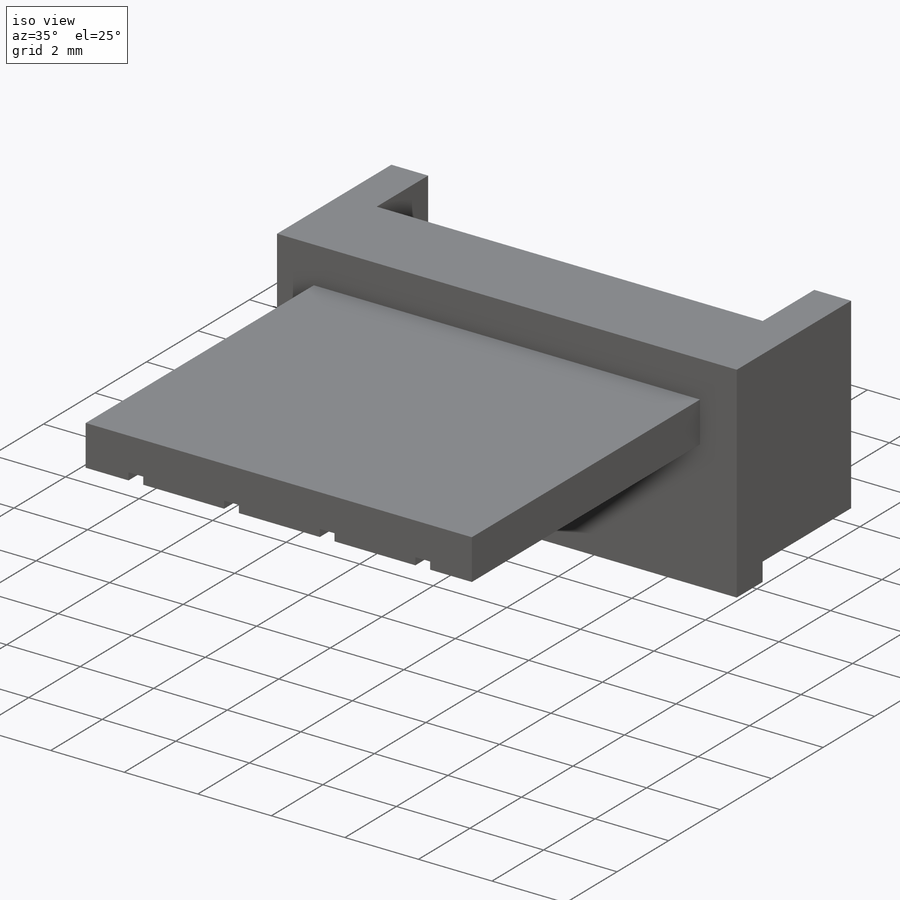
[diagram: iso view]
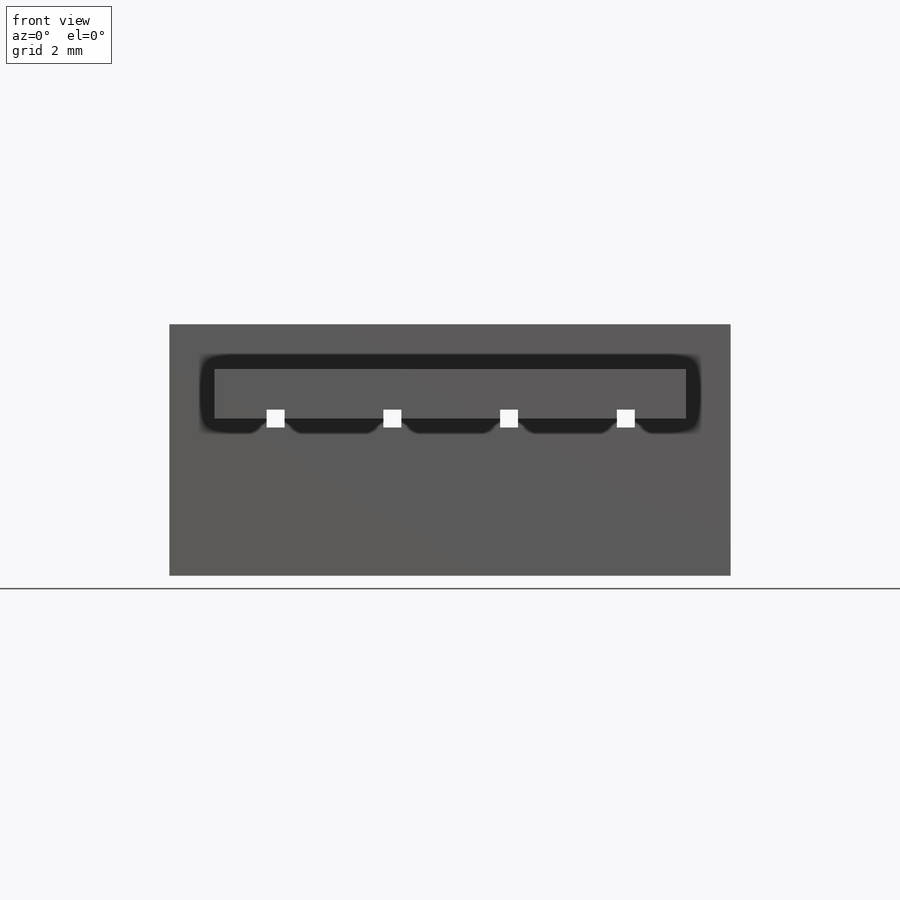
[diagram: front view]
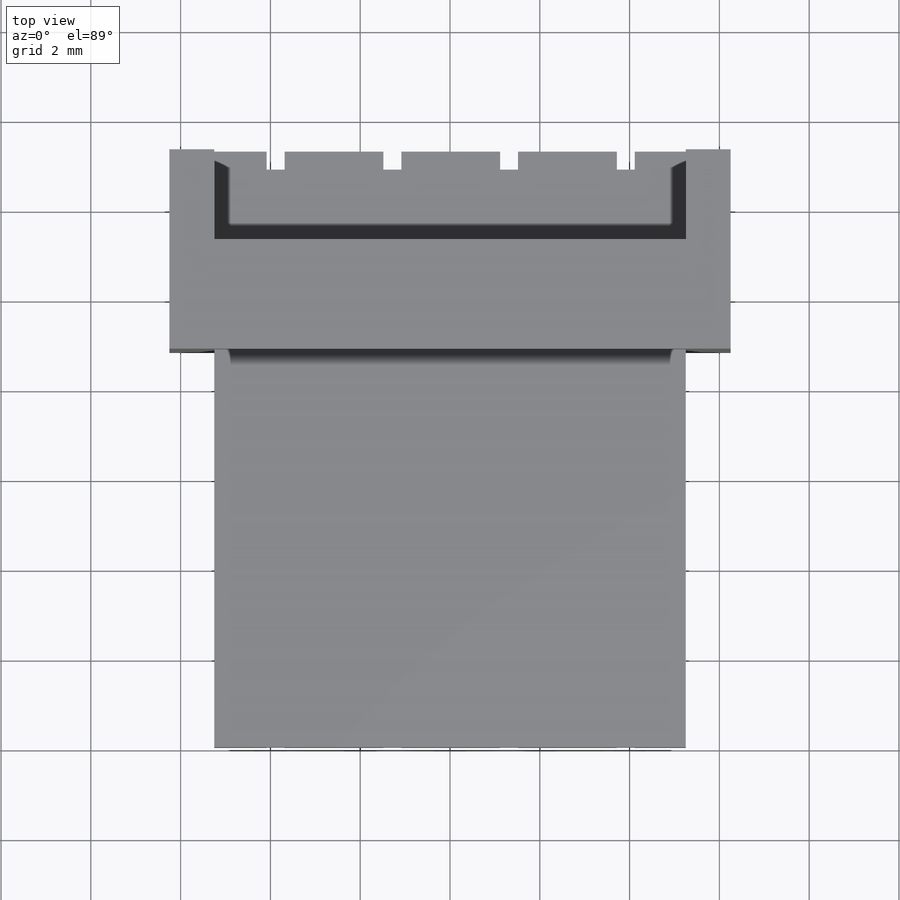
[diagram: top view]
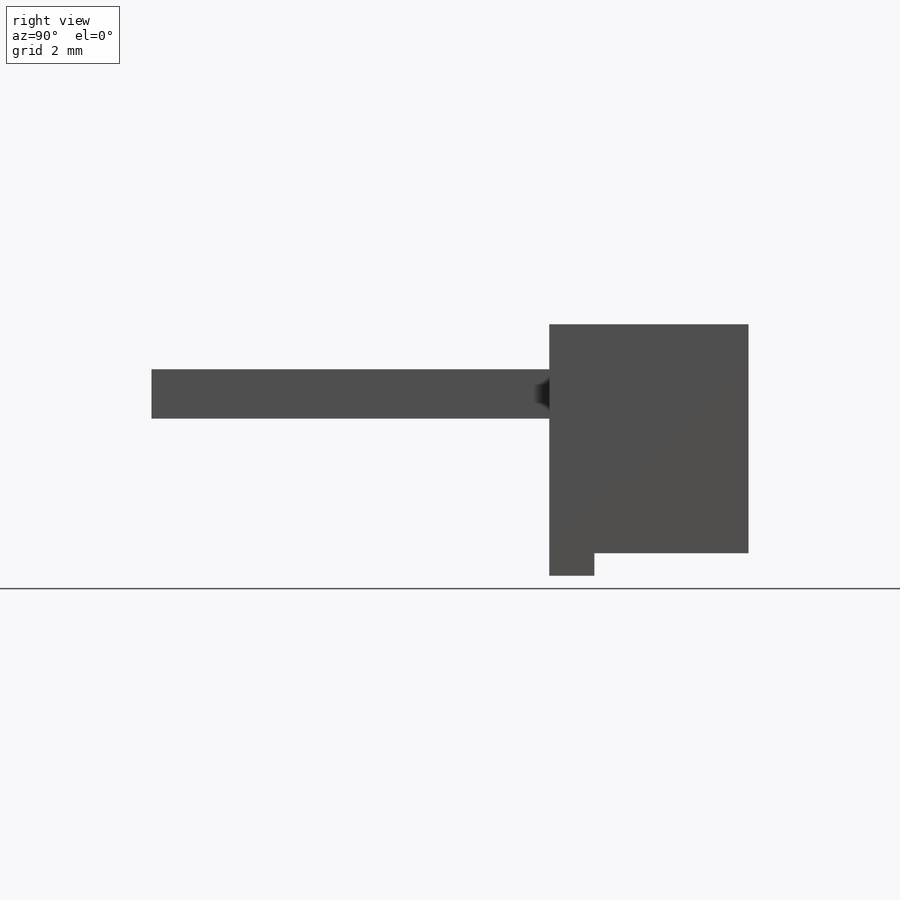
[diagram: right view]
SOLIDWORKS PART (.sldprt)
format: sldprt  version: not decoded by parser v0  size: 300,544 bytes
history: native  units: mm
features: sketch x8, cut_extrude x4, extrude x2, material x1, mirror x1, sweep x1, pattern_linear x1 (+11 scaffold rows collapsed)
feature tree (29):
  scaffold x11  (default folders/planes/origin — collapsed)
  material  "ABS"
  sketch  "Эскиз1"  dims[D1=5.1mm]
  extrude  "Бобышка-Вытянуть1"  Depth=13.3mm
  sketch  "Эскиз2"  dims[D1=8.86mm]
  cut_extrude  "Вырез-Вытянуть1"  Depth=3mm
  mirror  "Зеркальное отражение1"
  sketch  "Трехмерный эскиз4"  dims[D1=0.2mm]
  sketch  "Эскиз6"  dims[D1=0.2949mm]
  sketch  "Эскиз7"  dims[D1=8.86mm]
  cut_extrude  "Вырез-Вытянуть2"  Depth=1mm
  sketch  "Эскиз8"
  extrude  "Бобышка-Вытянуть2"  Depth=0.5mm
  sketch  "Эскиз9"  dims[D1=1.0mm]
  cut_extrude  "Вырез-Вытянуть3"  Depth=8.86mm
  sweep  "Вырез-По траектории1"
  pattern_linear  "Линейный массив1"  Count1=4 Count2=1 Spacing1=2.6mm Spacing2=10mm
  sketch  "Эскиз10"  dims[D1=1.0mm D2=1.0mm D3=3.0mm]
  cut_extrude  "Вырез-Вытянуть4"  Depth=2mm
decode coverage: 14 of 17 modeling features carry decoded parameters
note: suppression state not decoded; provenance and decode notes live in map.json
